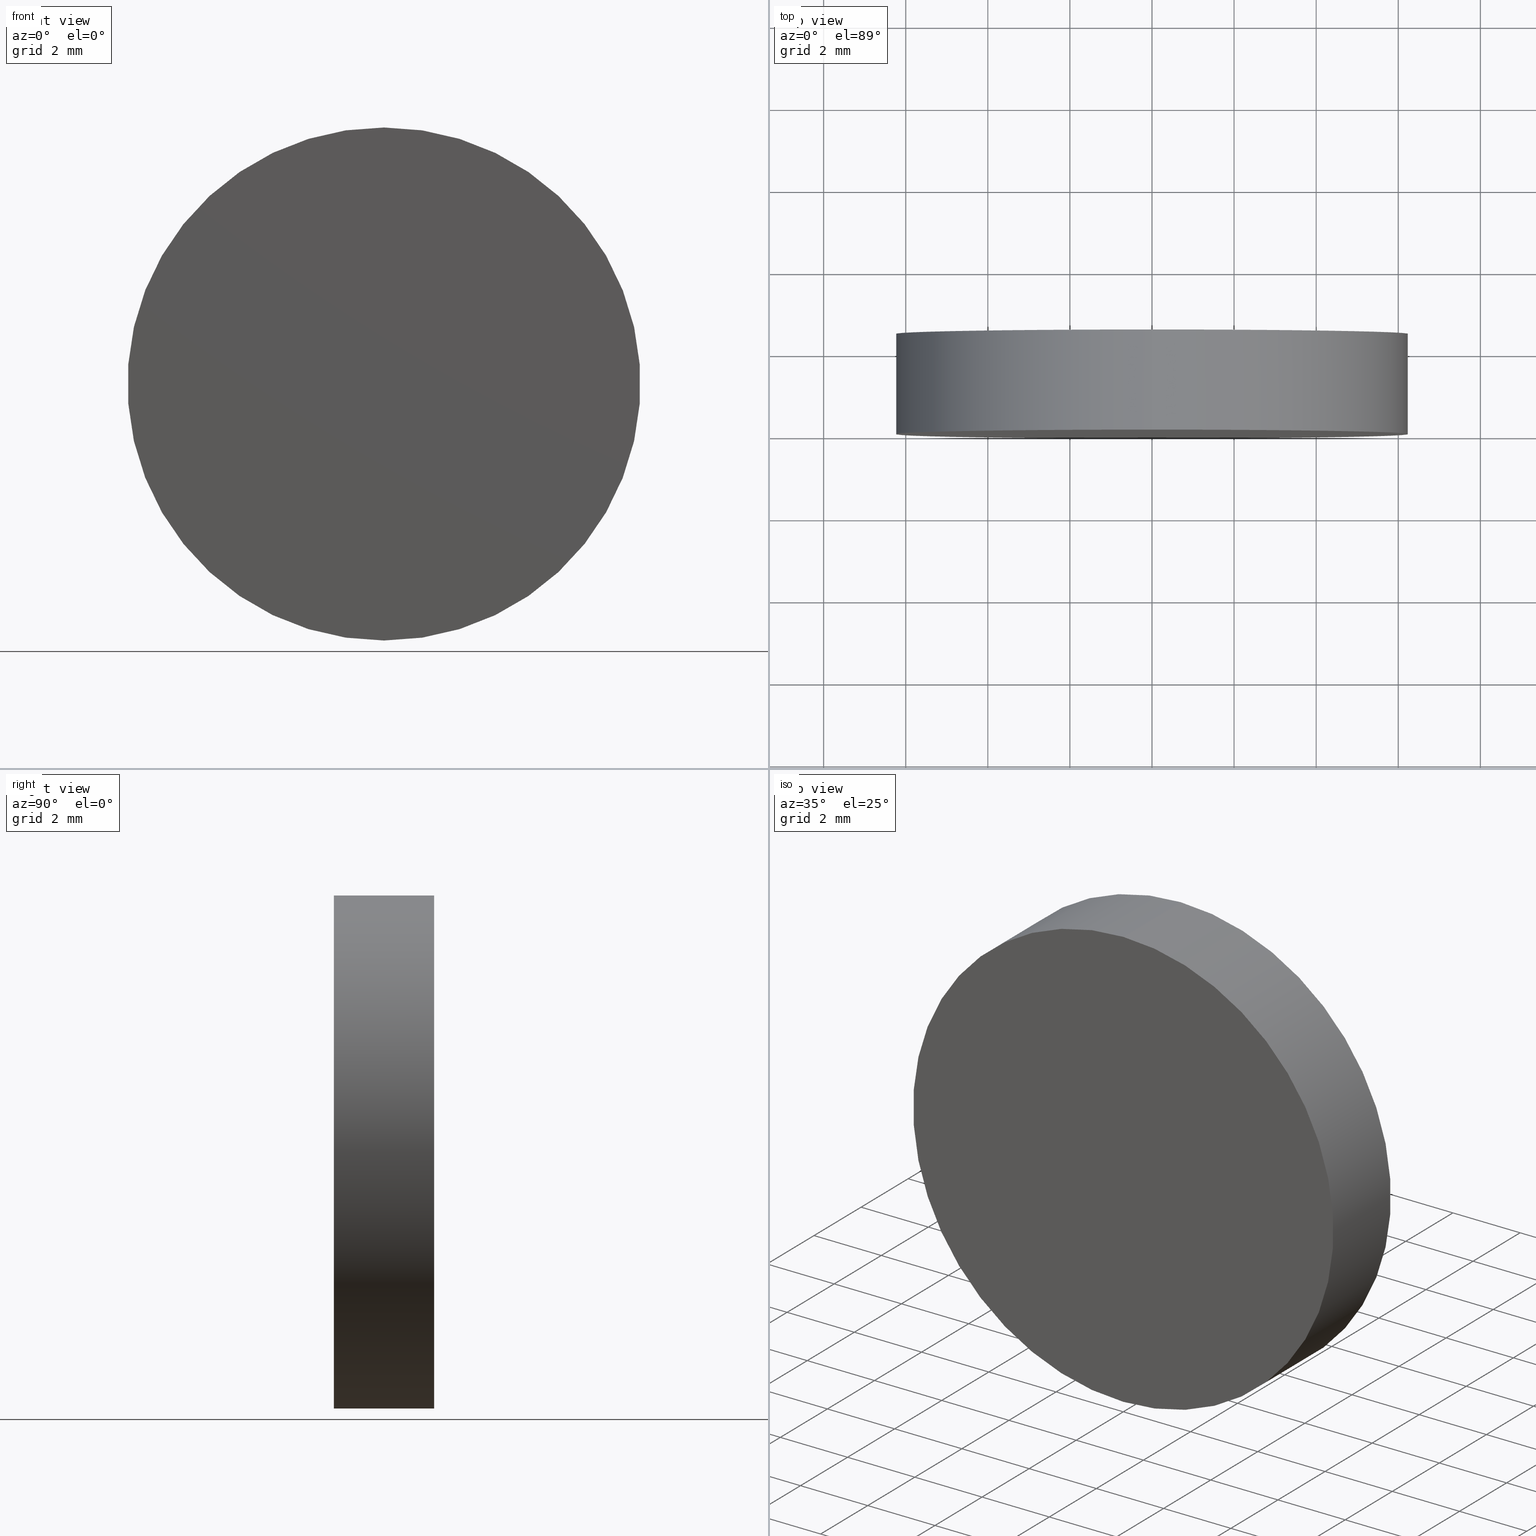
[diagram: canonical four-view strip — front | top / right | iso, engineering-drawing reading convention]
A machine part, canonical four-view strip (front | top / right | iso — engineering-drawing reading convention). The complete STEP part file that produces these views, byte-faithful:
ISO-10303-21;
HEADER;
FILE_DESCRIPTION (( 'STEP AP214' ),
    '1' );
FILE_NAME ('248569.STEP',
    '2019-08-02T08:22:42',
    ( 'user' ),
    ( '΢���й�' ),
    'SwSTEP 2.0',
    'SolidWorks 2016',
    '' );
FILE_SCHEMA (( 'AUTOMOTIVE_DESIGN' ));
ENDSEC;

DATA;
#1 = AXIS2_PLACEMENT_3D ( 'NONE', #79, #12, #80 ) ;
#2 = ORIENTED_EDGE ( 'NONE', *, *, #27, .F. ) ;
#3 = EDGE_LOOP ( 'NONE', ( #51, #24 ) ) ;
#4 = CARTESIAN_POINT ( 'NONE',  ( 7.654042494670957600E-016, 2.439999999999999900, 6.250000000000000000 ) ) ;
#5 = CARTESIAN_POINT ( 'NONE',  ( 0.0000000000000000000, 2.439999999999999900, 0.0000000000000000000 ) ) ;
#6 = DIRECTION ( 'NONE',  ( 0.0000000000000000000, 1.000000000000000000, 0.0000000000000000000 ) ) ;
#7 = SHAPE_DEFINITION_REPRESENTATION ( #59, #63 ) ;
#8 = VERTEX_POINT ( 'NONE', #75 ) ;
#9 =( LENGTH_UNIT ( ) NAMED_UNIT ( * ) SI_UNIT ( .MILLI., .METRE. ) );
#10 = CARTESIAN_POINT ( 'NONE',  ( 0.0000000000000000000, 2.439999999999999900, 0.0000000000000000000 ) ) ;
#11 = EDGE_CURVE ( 'NONE', #64, #68, #130, .T. ) ;
#12 = DIRECTION ( 'NONE',  ( 0.0000000000000000000, 1.000000000000000000, 0.0000000000000000000 ) ) ;
#13 = SURFACE_STYLE_FILL_AREA ( #125 ) ;
#14 = ORIENTED_EDGE ( 'NONE', *, *, #47, .F. ) ;
#15 =( GEOMETRIC_REPRESENTATION_CONTEXT ( 3 ) GLOBAL_UNCERTAINTY_ASSIGNED_CONTEXT ( ( #85 ) ) GLOBAL_UNIT_ASSIGNED_CONTEXT ( ( #117, #44, #108 ) ) REPRESENTATION_CONTEXT ( 'NONE', 'WORKASPACE' ) );
#16 = DIRECTION ( 'NONE',  ( -0.0000000000000000000, -1.000000000000000000, -0.0000000000000000000 ) ) ;
#17 = PRODUCT_DEFINITION_CONTEXT ( 'detailed design', #54, 'design' ) ;
#18 = EDGE_LOOP ( 'NONE', ( #14, #112, #124, #93 ) ) ;
#19 =( NAMED_UNIT ( * ) SI_UNIT ( $, .STERADIAN. ) SOLID_ANGLE_UNIT ( ) );
#20 = DIRECTION ( 'NONE',  ( 0.0000000000000000000, 0.0000000000000000000, -1.000000000000000000 ) ) ;
#21 = STYLED_ITEM ( 'NONE', ( #49 ), #63 ) ;
#22 = EDGE_CURVE ( 'NONE', #68, #64, #120, .T. ) ;
#23 = FACE_OUTER_BOUND ( 'NONE', #94, .T. ) ;
#24 = ORIENTED_EDGE ( 'NONE', *, *, #47, .T. ) ;
#25 = STYLED_ITEM ( 'NONE', ( #115 ), #69 ) ;
#26 = DIRECTION ( 'NONE',  ( 0.0000000000000000000, 1.000000000000000000, 0.0000000000000000000 ) ) ;
#27 = EDGE_CURVE ( 'NONE', #102, #8, #46, .T. ) ;
#28 =( LENGTH_UNIT ( ) NAMED_UNIT ( * ) SI_UNIT ( .MILLI., .METRE. ) );
#29 = VECTOR ( 'NONE', #135, 1000.000000000000000 ) ;
#30 = EDGE_CURVE ( 'NONE', #102, #64, #83, .T. ) ;
#31 = UNCERTAINTY_MEASURE_WITH_UNIT (LENGTH_MEASURE( 1.000000000000000100E-005 ), #28, 'distance_accuracy_value', 'NONE');
#32 = AXIS2_PLACEMENT_3D ( 'NONE', #58, #6, #111 ) ;
#33 = ORIENTED_EDGE ( 'NONE', *, *, #65, .F. ) ;
#34 = PRODUCT_RELATED_PRODUCT_CATEGORY ( 'part', '', ( #55 ) ) ;
#35 = FACE_OUTER_BOUND ( 'NONE', #57, .T. ) ;
#36 = SURFACE_STYLE_FILL_AREA ( #105 ) ;
#37 = DIRECTION ( 'NONE',  ( 0.0000000000000000000, 1.000000000000000000, 0.0000000000000000000 ) ) ;
#38 = DIRECTION ( 'NONE',  ( 0.0000000000000000000, 1.000000000000000000, 0.0000000000000000000 ) ) ;
#39 = ADVANCED_FACE ( 'NONE', ( #62 ), #138, .T. ) ;
#40 = AXIS2_PLACEMENT_3D ( 'NONE', #43, #16, #123 ) ;
#41 = SURFACE_SIDE_STYLE ('',( #36 ) ) ;
#42 = COLOUR_RGB ( '',1.000000000000000000, 1.000000000000000000, 1.000000000000000000 ) ;
#43 = CARTESIAN_POINT ( 'NONE',  ( 0.0000000000000000000, 2.439999999999999900, 0.0000000000000000000 ) ) ;
#44 =( NAMED_UNIT ( * ) PLANE_ANGLE_UNIT ( ) SI_UNIT ( $, .RADIAN. ) );
#45 = CIRCLE ( 'NONE', #71, 6.250000000000000000 ) ;
#46 = CIRCLE ( 'NONE', #106, 6.250000000000000000 ) ;
#47 = EDGE_CURVE ( 'NONE', #8, #102, #45, .T. ) ;
#48 = CARTESIAN_POINT ( 'NONE',  ( 0.0000000000000000000, 2.439999999999999900, 0.0000000000000000000 ) ) ;
#49 = PRESENTATION_STYLE_ASSIGNMENT (( #97 ) ) ;
#50 = CARTESIAN_POINT ( 'NONE',  ( 0.0000000000000000000, 2.439999999999999900, -6.250000000000000000 ) ) ;
#51 = ORIENTED_EDGE ( 'NONE', *, *, #27, .T. ) ;
#52 = DIRECTION ( 'NONE',  ( 0.0000000000000000000, 1.000000000000000000, 0.0000000000000000000 ) ) ;
#53 = ADVANCED_FACE ( 'NONE', ( #35 ), #82, .F. ) ;
#54 = APPLICATION_CONTEXT ( 'automotive_design' ) ;
#55 = PRODUCT ( '248569', '248569', '', ( #77 ) ) ;
#56 = FILL_AREA_STYLE_COLOUR ( '', #81 ) ;
#57 = EDGE_LOOP ( 'NONE', ( #89, #107 ) ) ;
#58 = CARTESIAN_POINT ( 'NONE',  ( 0.0000000000000000000, 0.0000000000000000000, 0.0000000000000000000 ) ) ;
#59 = PRODUCT_DEFINITION_SHAPE ( 'NONE', 'NONE',  #121 ) ;
#60 = SURFACE_STYLE_USAGE ( .BOTH. , #129 ) ;
#61 = AXIS2_PLACEMENT_3D ( 'NONE', #122, #26, #95 ) ;
#62 = FACE_OUTER_BOUND ( 'NONE', #18, .T. ) ;
#63 = ADVANCED_BREP_SHAPE_REPRESENTATION ( '248569', ( #69, #109 ), #99 ) ;
#64 = VERTEX_POINT ( 'NONE', #133 ) ;
#65 = EDGE_CURVE ( 'NONE', #8, #68, #91, .T. ) ;
#66 = ADVANCED_FACE ( 'NONE', ( #101 ), #134, .T. ) ;
#67 =( NAMED_UNIT ( * ) PLANE_ANGLE_UNIT ( ) SI_UNIT ( $, .RADIAN. ) );
#68 = VERTEX_POINT ( 'NONE', #114 ) ;
#69 = MANIFOLD_SOLID_BREP ( '͹̨-����1', #128 ) ;
#70 = MECHANICAL_DESIGN_GEOMETRIC_PRESENTATION_REPRESENTATION (  '', ( #25 ), #15 ) ;
#71 = AXIS2_PLACEMENT_3D ( 'NONE', #48, #37, #103 ) ;
#72 = DIRECTION ( 'NONE',  ( -0.0000000000000000000, -1.000000000000000000, -0.0000000000000000000 ) ) ;
#73 = ORIENTED_EDGE ( 'NONE', *, *, #30, .T. ) ;
#74 = CARTESIAN_POINT ( 'NONE',  ( 0.0000000000000000000, 2.439999999999999900, -6.250000000000000000 ) ) ;
#75 = CARTESIAN_POINT ( 'NONE',  ( 7.654042494670957600E-016, 2.439999999999999900, 6.250000000000000000 ) ) ;
#76 = PRODUCT_DEFINITION_FORMATION_WITH_SPECIFIED_SOURCE ( '�κ�', '', #55, .NOT_KNOWN. ) ;
#77 = PRODUCT_CONTEXT ( 'NONE', #116, 'mechanical' ) ;
#78 = VECTOR ( 'NONE', #72, 1000.000000000000000 ) ;
#79 = CARTESIAN_POINT ( 'NONE',  ( 0.0000000000000000000, 0.0000000000000000000, 0.0000000000000000000 ) ) ;
#80 = DIRECTION ( 'NONE',  ( 0.0000000000000000000, 0.0000000000000000000, 1.000000000000000000 ) ) ;
#81 = COLOUR_RGB ( '',1.000000000000000000, 1.000000000000000000, 1.000000000000000000 ) ;
#82 = PLANE ( 'NONE',  #61 ) ;
#83 = LINE ( 'NONE', #50, #29 ) ;
#84 = FILL_AREA_STYLE_COLOUR ( '', #42 ) ;
#85 = UNCERTAINTY_MEASURE_WITH_UNIT (LENGTH_MEASURE( 1.000000000000000100E-005 ), #117, 'distance_accuracy_value', 'NONE');
#86 = DIRECTION ( 'NONE',  ( 0.0000000000000000000, 0.0000000000000000000, 1.000000000000000000 ) ) ;
#87 = PRESENTATION_LAYER_ASSIGNMENT (  '', '', ( #25 ) ) ;
#88 =( NAMED_UNIT ( * ) PLANE_ANGLE_UNIT ( ) SI_UNIT ( $, .RADIAN. ) );
#89 = ORIENTED_EDGE ( 'NONE', *, *, #11, .F. ) ;
#90 = DIRECTION ( 'NONE',  ( -0.0000000000000000000, -1.000000000000000000, -0.0000000000000000000 ) ) ;
#91 = LINE ( 'NONE', #4, #78 ) ;
#92 = MECHANICAL_DESIGN_GEOMETRIC_PRESENTATION_REPRESENTATION (  '', ( #21 ), #139 ) ;
#93 = ORIENTED_EDGE ( 'NONE', *, *, #30, .F. ) ;
#94 = EDGE_LOOP ( 'NONE', ( #33, #2, #73, #110 ) ) ;
#95 = DIRECTION ( 'NONE',  ( 0.0000000000000000000, -0.0000000000000000000, 1.000000000000000000 ) ) ;
#96 = DIRECTION ( 'NONE',  ( 0.0000000000000000000, -0.0000000000000000000, 1.000000000000000000 ) ) ;
#97 = SURFACE_STYLE_USAGE ( .BOTH. , #41 ) ;
#98 = CARTESIAN_POINT ( 'NONE',  ( 0.0000000000000000000, 0.0000000000000000000, 0.0000000000000000000 ) ) ;
#99 =( GEOMETRIC_REPRESENTATION_CONTEXT ( 3 ) GLOBAL_UNCERTAINTY_ASSIGNED_CONTEXT ( ( #131 ) ) GLOBAL_UNIT_ASSIGNED_CONTEXT ( ( #9, #88, #140 ) ) REPRESENTATION_CONTEXT ( 'NONE', 'WORKASPACE' ) );
#100 = AXIS2_PLACEMENT_3D ( 'NONE', #5, #52, #96 ) ;
#101 = FACE_OUTER_BOUND ( 'NONE', #3, .T. ) ;
#102 = VERTEX_POINT ( 'NONE', #74 ) ;
#103 = DIRECTION ( 'NONE',  ( 0.0000000000000000000, 0.0000000000000000000, 1.000000000000000000 ) ) ;
#104 = DIRECTION ( 'NONE',  ( 0.0000000000000000000, 0.0000000000000000000, 1.000000000000000000 ) ) ;
#105 = FILL_AREA_STYLE ('',( #56 ) ) ;
#106 = AXIS2_PLACEMENT_3D ( 'NONE', #113, #38, #104 ) ;
#107 = ORIENTED_EDGE ( 'NONE', *, *, #22, .F. ) ;
#108 =( NAMED_UNIT ( * ) SI_UNIT ( $, .STERADIAN. ) SOLID_ANGLE_UNIT ( ) );
#109 = AXIS2_PLACEMENT_3D ( 'NONE', #98, #86, #136 ) ;
#110 = ORIENTED_EDGE ( 'NONE', *, *, #11, .T. ) ;
#111 = DIRECTION ( 'NONE',  ( 0.0000000000000000000, 0.0000000000000000000, 1.000000000000000000 ) ) ;
#112 = ORIENTED_EDGE ( 'NONE', *, *, #65, .T. ) ;
#113 = CARTESIAN_POINT ( 'NONE',  ( 0.0000000000000000000, 2.439999999999999900, 0.0000000000000000000 ) ) ;
#114 = CARTESIAN_POINT ( 'NONE',  ( 7.654042494670957600E-016, 0.0000000000000000000, 6.250000000000000000 ) ) ;
#115 = PRESENTATION_STYLE_ASSIGNMENT (( #60 ) ) ;
#116 = APPLICATION_CONTEXT ( 'automotive_design' ) ;
#117 =( LENGTH_UNIT ( ) NAMED_UNIT ( * ) SI_UNIT ( .MILLI., .METRE. ) );
#118 = PRESENTATION_LAYER_ASSIGNMENT (  '', '', ( #21 ) ) ;
#119 = CYLINDRICAL_SURFACE ( 'NONE', #132, 6.250000000000000000 ) ;
#120 = CIRCLE ( 'NONE', #32, 6.250000000000000000 ) ;
#121 = PRODUCT_DEFINITION ( 'δ֪', '', #76, #17 ) ;
#122 = CARTESIAN_POINT ( 'NONE',  ( 0.0000000000000000000, 0.0000000000000000000, 0.0000000000000000000 ) ) ;
#123 = DIRECTION ( 'NONE',  ( 0.0000000000000000000, 0.0000000000000000000, -1.000000000000000000 ) ) ;
#124 = ORIENTED_EDGE ( 'NONE', *, *, #22, .T. ) ;
#125 = FILL_AREA_STYLE ('',( #84 ) ) ;
#126 = APPLICATION_PROTOCOL_DEFINITION ( 'draft international standard', 'automotive_design', 1998, #54 ) ;
#127 = APPLICATION_PROTOCOL_DEFINITION ( 'draft international standard', 'automotive_design', 1998, #116 ) ;
#128 = CLOSED_SHELL ( 'NONE', ( #39, #137, #66, #53 ) ) ;
#129 = SURFACE_SIDE_STYLE ('',( #13 ) ) ;
#130 = CIRCLE ( 'NONE', #1, 6.250000000000000000 ) ;
#131 = UNCERTAINTY_MEASURE_WITH_UNIT (LENGTH_MEASURE( 1.000000000000000100E-005 ), #9, 'distance_accuracy_value', 'NONE');
#132 = AXIS2_PLACEMENT_3D ( 'NONE', #10, #90, #20 ) ;
#133 = CARTESIAN_POINT ( 'NONE',  ( 0.0000000000000000000, 0.0000000000000000000, -6.250000000000000000 ) ) ;
#134 = PLANE ( 'NONE',  #100 ) ;
#135 = DIRECTION ( 'NONE',  ( -0.0000000000000000000, -1.000000000000000000, -0.0000000000000000000 ) ) ;
#136 = DIRECTION ( 'NONE',  ( 1.000000000000000000, 0.0000000000000000000, 0.0000000000000000000 ) ) ;
#137 = ADVANCED_FACE ( 'NONE', ( #23 ), #119, .T. ) ;
#138 = CYLINDRICAL_SURFACE ( 'NONE', #40, 6.250000000000000000 ) ;
#139 =( GEOMETRIC_REPRESENTATION_CONTEXT ( 3 ) GLOBAL_UNCERTAINTY_ASSIGNED_CONTEXT ( ( #31 ) ) GLOBAL_UNIT_ASSIGNED_CONTEXT ( ( #28, #67, #19 ) ) REPRESENTATION_CONTEXT ( 'NONE', 'WORKASPACE' ) );
#140 =( NAMED_UNIT ( * ) SI_UNIT ( $, .STERADIAN. ) SOLID_ANGLE_UNIT ( ) );
ENDSEC;
END-ISO-10303-21;
